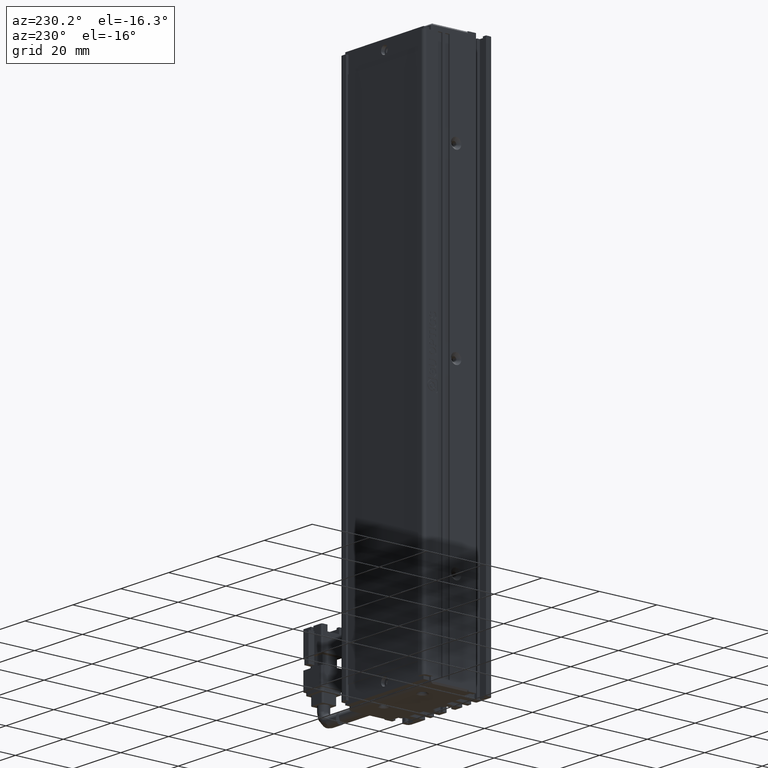
[diagram: clean part render]
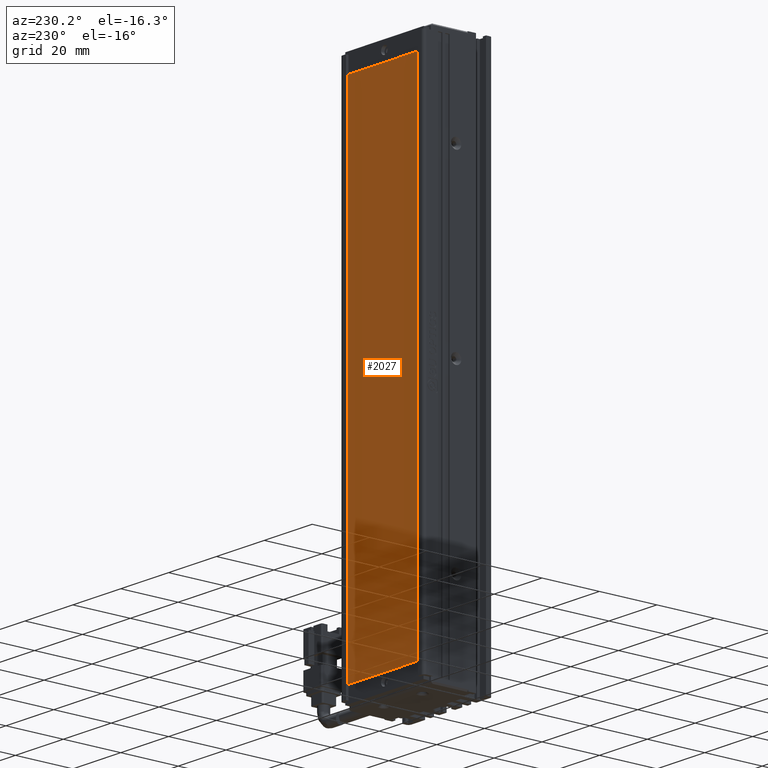
[diagram: same view with one face highlighted and labeled with its STEP entity id]
A machine part, auxiliary view. The second image highlights one B-rep face of the part: STEP entity #2027.
In plain terms, the highlighted planar face has unit normal (0, 1, 0).
Its self-contained STEP definition (entity closure, byte-faithful):
#2027 = ADVANCED_FACE ( 'NONE', ( #8008 ), #78810, .T. ) ;
#2530 = LINE ( 'NONE', #64667, #17697 ) ;
#4816 = CARTESIAN_POINT ( 'NONE',  ( 55.93512251846632900, 34.29073232304837400, -30.53415309237264500 ) ) ;
#4899 = EDGE_CURVE ( 'NONE', #44266, #34607, #2530, .T. ) ;
#5601 = ORIENTED_EDGE ( 'NONE', *, *, #10135, .T. ) ;
#8008 = FACE_OUTER_BOUND ( 'NONE', #24124, .T. ) ;
#10135 = EDGE_CURVE ( 'NONE', #34607, #55204, #56248, .T. ) ;
#13033 = VECTOR ( 'NONE', #38743, 1000.000000000000000 ) ;
#14000 = CARTESIAN_POINT ( 'NONE',  ( 25.93512251846632900, 34.29073232304837400, -200.5341530923726600 ) ) ;
#17697 = VECTOR ( 'NONE', #27659, 1000.000000000000000 ) ;
#18795 = DIRECTION ( 'NONE',  ( 1.000000000000000000, 0.0000000000000000000, 0.0000000000000000000 ) ) ;
#19711 = EDGE_CURVE ( 'NONE', #20633, #44266, #28623, .T. ) ;
#20633 = VERTEX_POINT ( 'NONE', #40245 ) ;
#24124 = EDGE_LOOP ( 'NONE', ( #46032, #73082, #25564, #5601 ) ) ;
#25564 = ORIENTED_EDGE ( 'NONE', *, *, #4899, .T. ) ;
#27659 = DIRECTION ( 'NONE',  ( 1.224510688924804800E-016, 0.0000000000000000000, 1.000000000000000000 ) ) ;
#28623 = LINE ( 'NONE', #35608, #59086 ) ;
#34607 = VERTEX_POINT ( 'NONE', #72897 ) ;
#35608 = CARTESIAN_POINT ( 'NONE',  ( 55.93512251846632900, 34.29073232304837400, -200.5341530923726600 ) ) ;
#35999 = CARTESIAN_POINT ( 'NONE',  ( 25.93512251846635100, 34.29073232304837400, -30.53415309237264500 ) ) ;
#38743 = DIRECTION ( 'NONE',  ( 0.0000000000000000000, 0.0000000000000000000, -1.000000000000000000 ) ) ;
#40245 = CARTESIAN_POINT ( 'NONE',  ( 55.93512251846632900, 34.29073232304837400, -200.5341530923726600 ) ) ;
#41913 = VECTOR ( 'NONE', #18795, 1000.000000000000000 ) ;
#42438 = LINE ( 'NONE', #69095, #13033 ) ;
#44266 = VERTEX_POINT ( 'NONE', #14000 ) ;
#46032 = ORIENTED_EDGE ( 'NONE', *, *, #67045, .T. ) ;
#48432 = CARTESIAN_POINT ( 'NONE',  ( 0.0000000000000000000, 34.29073232304837400, 0.0000000000000000000 ) ) ;
#54386 = DIRECTION ( 'NONE',  ( 0.0000000000000000000, -0.0000000000000000000, 1.000000000000000000 ) ) ;
#54916 = DIRECTION ( 'NONE',  ( 0.0000000000000000000, 1.000000000000000000, 0.0000000000000000000 ) ) ;
#55204 = VERTEX_POINT ( 'NONE', #4816 ) ;
#56248 = LINE ( 'NONE', #35999, #41913 ) ;
#59086 = VECTOR ( 'NONE', #65730, 1000.000000000000000 ) ;
#64667 = CARTESIAN_POINT ( 'NONE',  ( 25.93512251846632900, 34.29073232304837400, -200.5341530923726600 ) ) ;
#65730 = DIRECTION ( 'NONE',  ( -1.000000000000000000, 0.0000000000000000000, 0.0000000000000000000 ) ) ;
#67045 = EDGE_CURVE ( 'NONE', #55204, #20633, #42438, .T. ) ;
#69095 = CARTESIAN_POINT ( 'NONE',  ( 55.93512251846632900, 34.29073232304837400, -30.53415309237264500 ) ) ;
#72897 = CARTESIAN_POINT ( 'NONE',  ( 25.93512251846635100, 34.29073232304837400, -30.53415309237264500 ) ) ;
#73082 = ORIENTED_EDGE ( 'NONE', *, *, #19711, .T. ) ;
#78004 = AXIS2_PLACEMENT_3D ( 'NONE', #48432, #54916, #54386 ) ;
#78810 = PLANE ( 'NONE',  #78004 ) ;